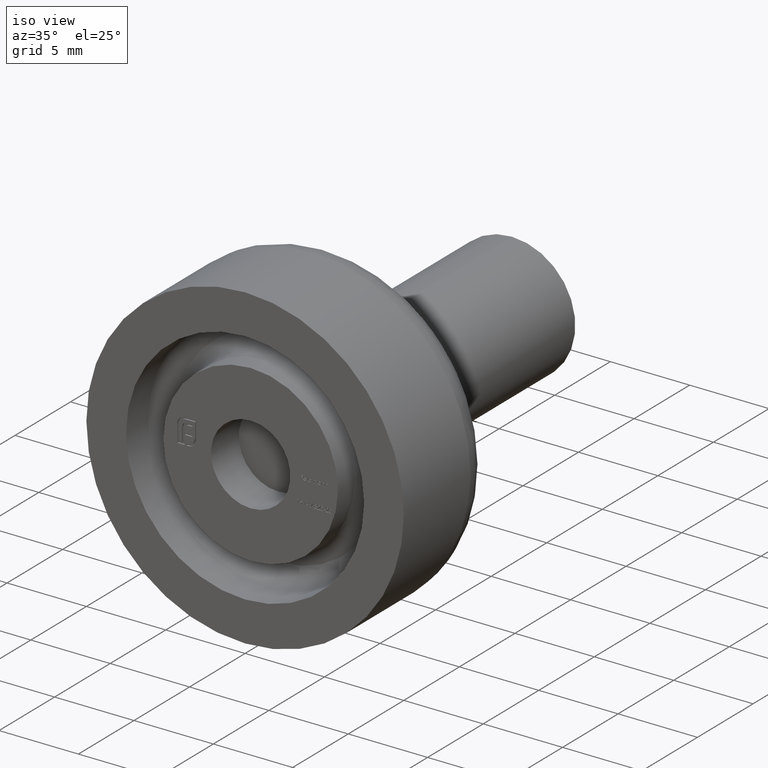
[diagram: clean part render]
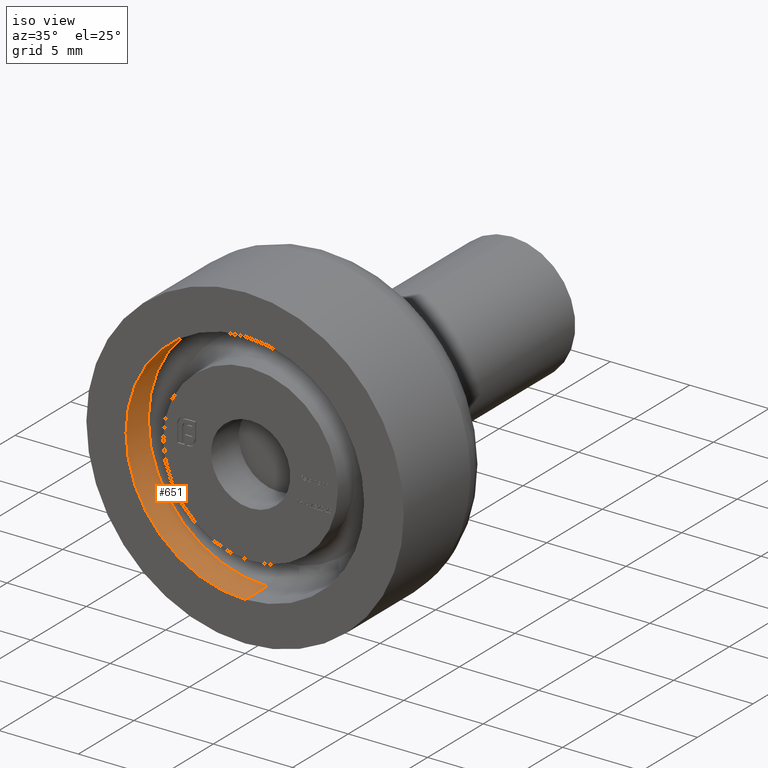
[diagram: same view with one face highlighted and labeled with its STEP entity id]
A machine part, iso view. The second image highlights one B-rep face of the part: STEP entity #651.
In plain terms, the highlighted cylindrical surface (partial cylindrical patch) has radius 7.5 mm, axis along (-0, -1, -0).
Its self-contained STEP definition (entity closure, byte-faithful):
#379 = DIRECTION ( 'NONE',  ( 0.000000000000000000, 0.000000000000000000, -1.000000000000000000 ) ) ;
#651 = ADVANCED_FACE ( 'NONE', ( #10928 ), #8869, .F. ) ;
#876 = VERTEX_POINT ( 'NONE', #10114 ) ;
#1472 = CARTESIAN_POINT ( 'NONE',  ( 9.184850993605147944E-16, 0.000000000000000000, 7.500000000000000000 ) ) ;
#2174 = EDGE_CURVE ( 'NONE', #876, #14755, #12243, .T. ) ;
#2567 = DIRECTION ( 'NONE',  ( -0.000000000000000000, -1.000000000000000000, -0.000000000000000000 ) ) ;
#3336 = VECTOR ( 'NONE', #12882, 1000.000000000000000 ) ;
#3509 = ORIENTED_EDGE ( 'NONE', *, *, #12692, .T. ) ;
#3593 = CARTESIAN_POINT ( 'NONE',  ( 0.000000000000000000, 3.000000000000000000, 0.000000000000000000 ) ) ;
#4047 = DIRECTION ( 'NONE',  ( -0.000000000000000000, 1.000000000000000000, -0.000000000000000000 ) ) ;
#5212 = CARTESIAN_POINT ( 'NONE',  ( 0.000000000000000000, 2.000000000000000000, 0.000000000000000000 ) ) ;
#5806 = EDGE_CURVE ( 'NONE', #8445, #8944, #8015, .T. ) ;
#6051 = CARTESIAN_POINT ( 'NONE',  ( 0.000000000000000000, 0.000000000000000000, -7.500000000000000000 ) ) ;
#6965 = CIRCLE ( 'NONE', #14621, 7.500000000000000000 ) ;
#8015 = LINE ( 'NONE', #15180, #3336 ) ;
#8269 = CIRCLE ( 'NONE', #15312, 7.500000000000000000 ) ;
#8445 = VERTEX_POINT ( 'NONE', #13195 ) ;
#8869 = CYLINDRICAL_SURFACE ( 'NONE', #11789, 7.500000000000000000 ) ;
#8944 = VERTEX_POINT ( 'NONE', #6051 ) ;
#9032 = VECTOR ( 'NONE', #2567, 1000.000000000000000 ) ;
#9746 = CARTESIAN_POINT ( 'NONE',  ( 9.184850993605147944E-16, 3.000000000000000000, 7.500000000000000000 ) ) ;
#10114 = CARTESIAN_POINT ( 'NONE',  ( 9.184850993605147944E-16, 2.000000000000000000, 7.500000000000000000 ) ) ;
#10247 = ORIENTED_EDGE ( 'NONE', *, *, #2174, .T. ) ;
#10794 = DIRECTION ( 'NONE',  ( 0.000000000000000000, 0.000000000000000000, -1.000000000000000000 ) ) ;
#10849 = CARTESIAN_POINT ( 'NONE',  ( 0.000000000000000000, 0.000000000000000000, 0.000000000000000000 ) ) ;
#10928 = FACE_OUTER_BOUND ( 'NONE', #13922, .T. ) ;
#10984 = EDGE_CURVE ( 'NONE', #8445, #876, #6965, .T. ) ;
#11789 = AXIS2_PLACEMENT_3D ( 'NONE', #3593, #14508, #11991 ) ;
#11991 = DIRECTION ( 'NONE',  ( 0.000000000000000000, 0.000000000000000000, -1.000000000000000000 ) ) ;
#12243 = LINE ( 'NONE', #9746, #9032 ) ;
#12692 = EDGE_CURVE ( 'NONE', #14755, #8944, #8269, .T. ) ;
#12882 = DIRECTION ( 'NONE',  ( -0.000000000000000000, -1.000000000000000000, -0.000000000000000000 ) ) ;
#13195 = CARTESIAN_POINT ( 'NONE',  ( 0.000000000000000000, 2.000000000000000000, -7.500000000000000000 ) ) ;
#13221 = ORIENTED_EDGE ( 'NONE', *, *, #10984, .T. ) ;
#13334 = DIRECTION ( 'NONE',  ( 0.000000000000000000, -1.000000000000000000, 0.000000000000000000 ) ) ;
#13609 = ORIENTED_EDGE ( 'NONE', *, *, #5806, .F. ) ;
#13922 = EDGE_LOOP ( 'NONE', ( #13221, #10247, #3509, #13609 ) ) ;
#14508 = DIRECTION ( 'NONE',  ( -0.000000000000000000, -1.000000000000000000, -0.000000000000000000 ) ) ;
#14621 = AXIS2_PLACEMENT_3D ( 'NONE', #5212, #4047, #379 ) ;
#14755 = VERTEX_POINT ( 'NONE', #1472 ) ;
#15180 = CARTESIAN_POINT ( 'NONE',  ( 0.000000000000000000, 3.000000000000000000, -7.500000000000000000 ) ) ;
#15312 = AXIS2_PLACEMENT_3D ( 'NONE', #10849, #13334, #10794 ) ;